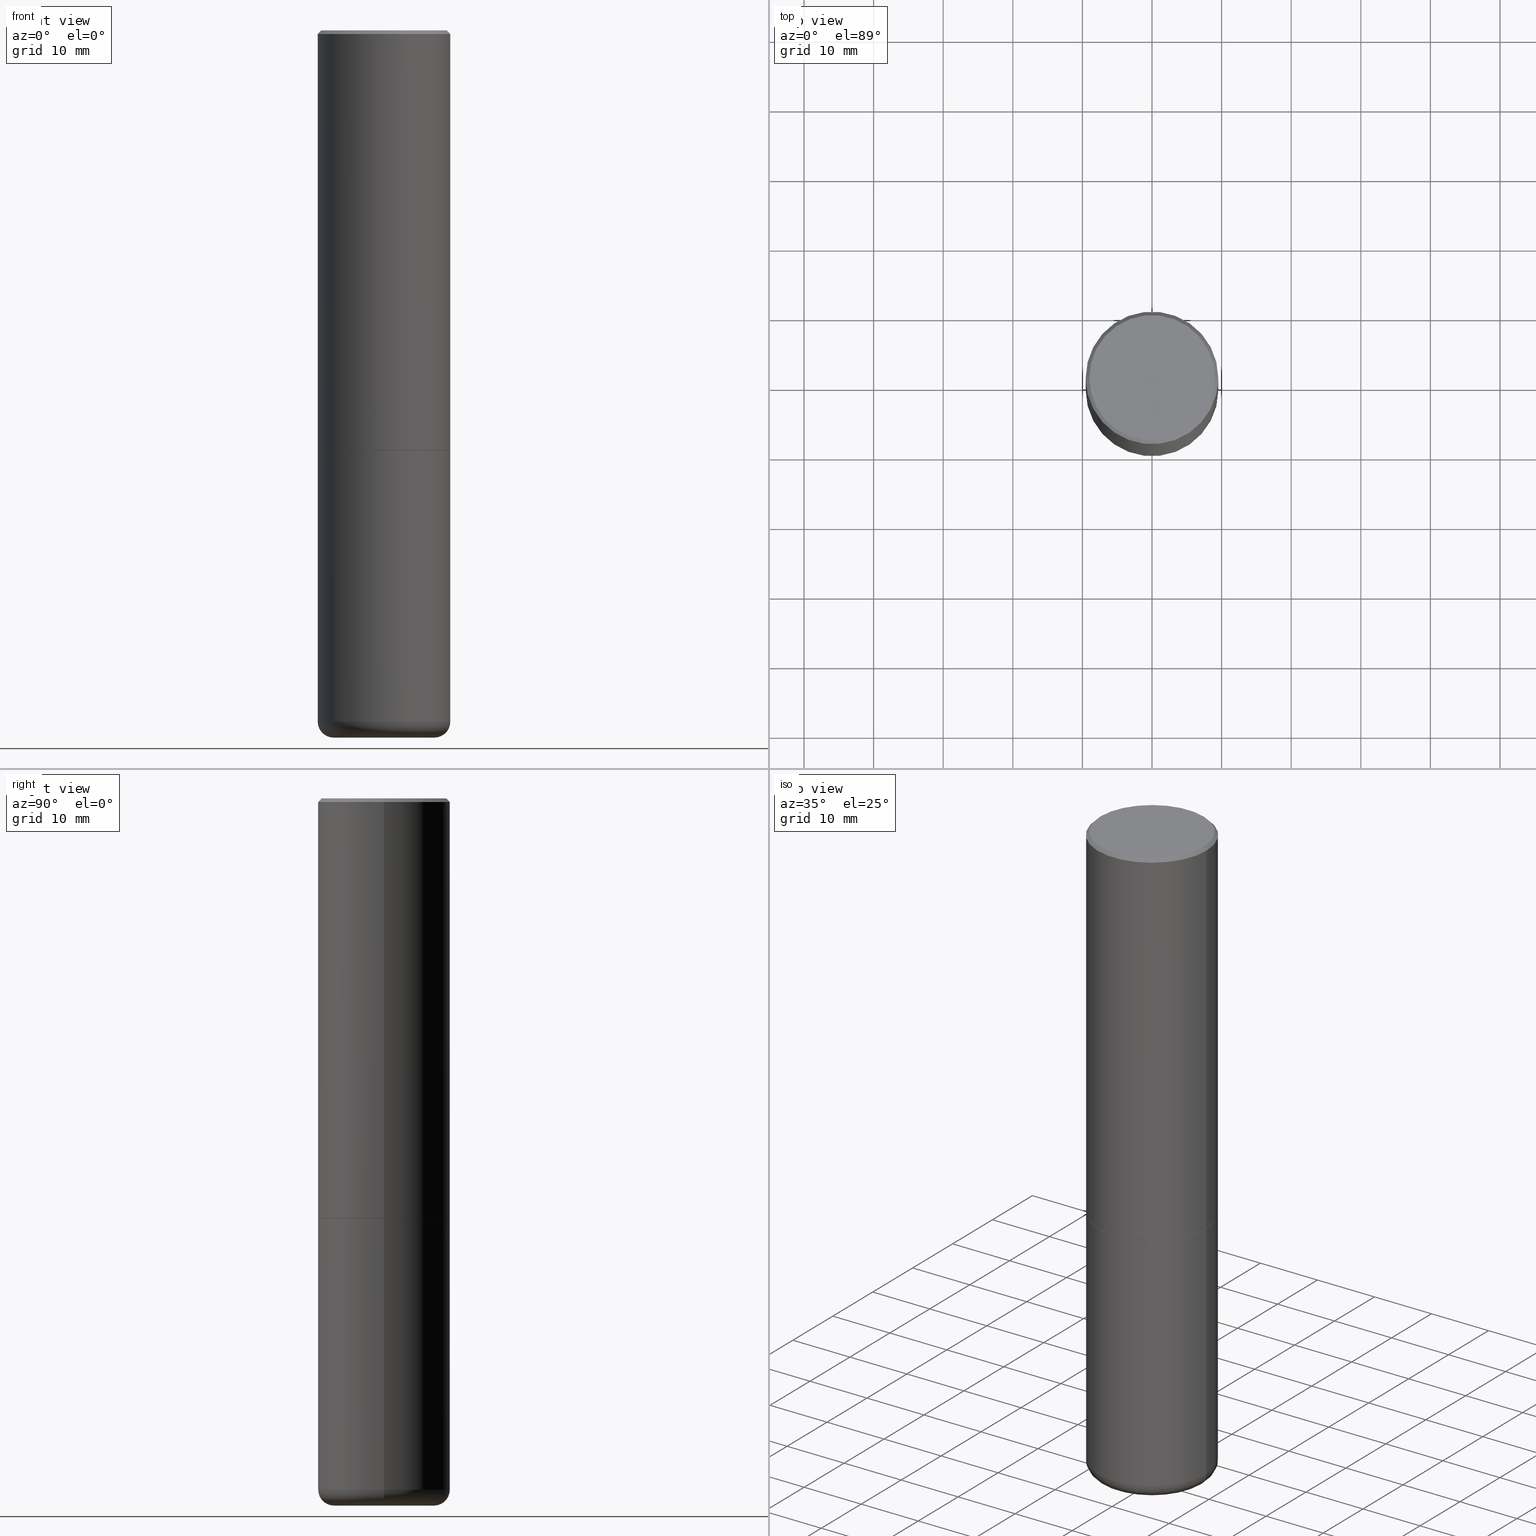
[diagram: canonical four-view strip — front | top / right | iso, engineering-drawing reading convention]
A machine part, canonical four-view strip (front | top / right | iso — engineering-drawing reading convention). The complete STEP part file that produces these views, byte-faithful:
ISO-10303-21;
HEADER;
FILE_DESCRIPTION (( 'STEP AP203' ),
    '1' );
FILE_NAME ('35122.STEP',
    '2022-07-29T12:17:45',
    ( '' ),
    ( '' ),
    'SwSTEP 2.0',
    'SolidWorks 2022',
    '' );
FILE_SCHEMA (( 'CONFIG_CONTROL_DESIGN' ));
ENDSEC;

DATA;
#1 = EDGE_CURVE ( 'NONE', #366, #122, #339, .T. ) ;
#2 = DIRECTION ( 'NONE',  ( 1.000000000000000000, -6.982962677686264344E-15, 0.000000000000000000 ) ) ;
#3 = ADVANCED_FACE ( 'NONE', ( #289 ), #429, .F. ) ;
#4 = LINE ( 'NONE', #270, #458 ) ;
#5 = DIRECTION ( 'NONE',  ( -2.445468806185136597E-29, 3.491481338843145583E-15, 1.000000000000000000 ) ) ;
#6 = VECTOR ( 'NONE', #206, 39.37007874015748143 ) ;
#7 = DIRECTION ( 'NONE',  ( 1.000000000000000000, -6.982962677686267499E-15, 0.000000000000000000 ) ) ;
#8 = DIRECTION ( 'NONE',  ( 1.000000000000000000, -6.982962677686269866E-15, 0.000000000000000000 ) ) ;
#9 = LINE ( 'NONE', #48, #70 ) ;
#10 = ORIENTED_EDGE ( 'NONE', *, *, #457, .F. ) ;
#11 = DIRECTION ( 'NONE',  ( 1.000000000000000000, -6.982962677686267499E-15, 0.000000000000000000 ) ) ;
#12 = VERTEX_POINT ( 'NONE', #244 ) ;
#13 = DIRECTION ( 'NONE',  ( 1.000000000000000000, 0.000000000000000000, 0.000000000000000000 ) ) ;
#14 = AXIS2_PLACEMENT_3D ( 'NONE', #303, #262, #386 ) ;
#15 = AXIS2_PLACEMENT_3D ( 'NONE', #312, #237, #436 ) ;
#16 = ORIENTED_EDGE ( 'NONE', *, *, #443, .T. ) ;
#17 = ORIENTED_EDGE ( 'NONE', *, *, #44, .T. ) ;
#18 = ADVANCED_BREP_SHAPE_REPRESENTATION ( '35122', ( #182, #352, #327 ), #196 ) ;
#19 = ORIENTED_EDGE ( 'NONE', *, *, #269, .F. ) ;
#20 = DIRECTION ( 'NONE',  ( 7.105427357601001859E-15, 1.000000000000000000, -3.491481338843145583E-15 ) ) ;
#21 = VERTEX_POINT ( 'NONE', #400 ) ;
#22 = DIRECTION ( 'NONE',  ( 0.7071067811865454633, -7.319954787623246579E-15, -0.7071067811865493491 ) ) ;
#23 = ORIENTED_EDGE ( 'NONE', *, *, #30, .T. ) ;
#24 = APPLICATION_CONTEXT ( 'configuration controlled 3d designs of mechanical parts and assemblies' ) ;
#25 = CIRCLE ( 'NONE', #278, 0.3549999999999992051 ) ;
#26 = APPROVAL_PERSON_ORGANIZATION ( #444, #175, #179 ) ;
#27 = DIRECTION ( 'NONE',  ( -2.445468806185136597E-29, 3.491481338843145583E-15, 1.000000000000000000 ) ) ;
#28 = APPROVAL ( #333, 'UNSPECIFIED' ) ;
#29 = CARTESIAN_POINT ( 'NONE',  ( 0.000000000000000000, 0.000000000000000000, 0.000000000000000000 ) ) ;
#30 = EDGE_CURVE ( 'NONE', #169, #21, #163, .T. ) ;
#31 = DIRECTION ( 'NONE',  ( 1.000000000000000000, -6.982962677686265922E-15, 4.876176775795935793E-29 ) ) ;
#32 = PERSON_AND_ORGANIZATION ( #306, #114 ) ;
#33 = CIRCLE ( 'NONE', #59, 0.08999999999999985789 ) ;
#34 = DATE_TIME_ROLE ( 'classification_date' ) ;
#35 = CARTESIAN_POINT ( 'NONE',  ( 0.2842146118051471215, -1.595058538206101543E-14, -4.000000000000000000 ) ) ;
#36 = APPROVAL_STATUS ( 'not_yet_approved' ) ;
#37 = ORIENTED_EDGE ( 'NONE', *, *, #443, .F. ) ;
#38 = AXIS2_PLACEMENT_3D ( 'NONE', #285, #200, #11 ) ;
#39 = AXIS2_PLACEMENT_3D ( 'NONE', #155, #415, #75 ) ;
#40 = DIRECTION ( 'NONE',  ( 2.445468806185136597E-29, -3.491481338843145583E-15, -1.000000000000000000 ) ) ;
#41 = CARTESIAN_POINT ( 'NONE',  ( 4.890937612370313446E-31, -6.982962677686349541E-17, -0.02000000000000016695 ) ) ;
#42 = FACE_OUTER_BOUND ( 'NONE', #131, .T. ) ;
#43 = DIRECTION ( 'NONE',  ( -1.000000000000000000, 6.982962677686267499E-15, 0.000000000000000000 ) ) ;
#44 = EDGE_CURVE ( 'NONE', #122, #366, #446, .T. ) ;
#45 = ADVANCED_FACE ( 'NONE', ( #282 ), #152, .T. ) ;
#46 = DIRECTION ( 'NONE',  ( -2.438088387897960049E-29, 3.491481338843145188E-15, 1.000000000000000000 ) ) ;
#47 = AXIS2_PLACEMENT_3D ( 'NONE', #384, #40, #450 ) ;
#48 = CARTESIAN_POINT ( 'NONE',  ( -0.3739999999999996105, -5.634838348009698584E-15, -2.375000000000000000 ) ) ;
#49 = AXIS2_PLACEMENT_3D ( 'NONE', #462, #160, #7 ) ;
#50 = VERTEX_POINT ( 'NONE', #217 ) ;
#51 = MECHANICAL_CONTEXT ( 'NONE', #377, 'mechanical' ) ;
#52 = ORIENTED_EDGE ( 'NONE', *, *, #445, .F. ) ;
#53 = EDGE_CURVE ( 'NONE', #93, #84, #234, .T. ) ;
#54 = ORIENTED_EDGE ( 'NONE', *, *, #433, .T. ) ;
#55 =( NAMED_UNIT ( * ) SI_UNIT ( $, .STERADIAN. ) SOLID_ANGLE_UNIT ( ) );
#56 = ORIENTED_EDGE ( 'NONE', *, *, #308, .T. ) ;
#57 = ORIENTED_EDGE ( 'NONE', *, *, #374, .T. ) ;
#58 = CIRCLE ( 'NONE', #390, 0.3549999999999992051 ) ;
#59 = AXIS2_PLACEMENT_3D ( 'NONE', #248, #330, #157 ) ;
#60 = ORIENTED_EDGE ( 'NONE', *, *, #461, .F. ) ;
#61 = CARTESIAN_POINT ( 'NONE',  ( 5.805542945883513814E-29, -8.288776698413627111E-15, -2.373999999999999666 ) ) ;
#62 = EDGE_LOOP ( 'NONE', ( #356, #233 ) ) ;
#63 = ADVANCED_FACE ( 'NONE', ( #336 ), #99, .T. ) ;
#64 = ORIENTED_EDGE ( 'NONE', *, *, #156, .T. ) ;
#65 = CC_DESIGN_PERSON_AND_ORGANIZATION_ASSIGNMENT ( #32, #295, ( #166 ) ) ;
#66 = CIRCLE ( 'NONE', #133, 0.3749999999999996114 ) ;
#67 = CONICAL_SURFACE ( 'NONE', #77, 0.2602146118051471002, 1.535889741755011029 ) ;
#68 = DIRECTION ( 'NONE',  ( -2.445468806185136597E-29, 3.491481338843145583E-15, 1.000000000000000000 ) ) ;
#69 = SHAPE_DEFINITION_REPRESENTATION ( #91, #18 ) ;
#70 = VECTOR ( 'NONE', #111, 39.37007874015748854 ) ;
#71 = EDGE_CURVE ( 'NONE', #21, #366, #183, .T. ) ;
#72 = LOCAL_TIME ( 8, 17, 45.00000000000000000, #142 ) ;
#73 = LINE ( 'NONE', #118, #426 ) ;
#74 = CALENDAR_DATE ( 2022, 29, 7 ) ;
#75 = DIRECTION ( 'NONE',  ( 1.000000000000000000, -6.982962677686265922E-15, 0.000000000000000000 ) ) ;
#76 = CONICAL_SURFACE ( 'NONE', #86, 0.2842146118051471215, 1.562069680534920346 ) ;
#77 = AXIS2_PLACEMENT_3D ( 'NONE', #115, #150, #267 ) ;
#78 = DIRECTION ( 'NONE',  ( -2.445468806185136597E-29, 3.491481338843145583E-15, 1.000000000000000000 ) ) ;
#79 = DIRECTION ( 'NONE',  ( -2.445468806185136877E-29, 3.491481338843145188E-15, 1.000000000000000000 ) ) ;
#80 = ADVANCED_FACE ( 'NONE', ( #178 ), #486, .T. ) ;
#81 = DIRECTION ( 'NONE',  ( -2.445468806185136597E-29, 3.491481338843145583E-15, 1.000000000000000000 ) ) ;
#82 = CARTESIAN_POINT ( 'NONE',  ( 5.807988414689699417E-29, -8.292268179752470118E-15, -2.375000000000000000 ) ) ;
#83 = LINE ( 'NONE', #268, #299 ) ;
#84 = VERTEX_POINT ( 'NONE', #177 ) ;
#85 = CARTESIAN_POINT ( 'NONE',  ( 0.3749999999999992784, -2.642516375941182506E-15, -0.02000000000000016695 ) ) ;
#86 = AXIS2_PLACEMENT_3D ( 'NONE', #422, #412, #264 ) ;
#87 = CC_DESIGN_APPROVAL ( #175, ( #176 ) ) ;
#88 = ORIENTED_EDGE ( 'NONE', *, *, #30, .F. ) ;
#89 = DIRECTION ( 'NONE',  ( 0.000000000000000000, 0.000000000000000000, 1.000000000000000000 ) ) ;
#90 = ORIENTED_EDGE ( 'NONE', *, *, #44, .F. ) ;
#91 = PRODUCT_DEFINITION_SHAPE ( 'NONE', 'NONE',  #205 ) ;
#92 = PERSON_AND_ORGANIZATION ( #306, #114 ) ;
#93 = VERTEX_POINT ( 'NONE', #213 ) ;
#94 = VERTEX_POINT ( 'NONE', #216 ) ;
#95 =( NAMED_UNIT ( * ) PLANE_ANGLE_UNIT ( ) SI_UNIT ( $, .RADIAN. ) );
#96 = ADVANCED_FACE ( 'NONE', ( #372 ), #479, .F. ) ;
#97 = ORIENTED_EDGE ( 'NONE', *, *, #215, .F. ) ;
#98 = DIRECTION ( 'NONE',  ( 1.000000000000000000, -6.982962677686264344E-15, 0.000000000000000000 ) ) ;
#99 = CYLINDRICAL_SURFACE ( 'NONE', #212, 0.3749999999999998335 ) ;
#100 = VECTOR ( 'NONE', #292, 39.37007874015748143 ) ;
#101 = APPROVAL_DATE_TIME ( #442, #175 ) ;
#102 = CALENDAR_DATE ( 2022, 29, 7 ) ;
#103 = AXIS2_PLACEMENT_3D ( 'NONE', #61, #476, #98 ) ;
#104 = AXIS2_PLACEMENT_3D ( 'NONE', #181, #135, #335 ) ;
#105 = CONICAL_SURFACE ( 'NONE', #144, 0.3739999999999996105, 0.7853981633974141952 ) ;
#106 = CARTESIAN_POINT ( 'NONE',  ( -0.3749999999999995559, -1.514767903494871085E-15, -2.373999999999999666 ) ) ;
#107 = PERSON_AND_ORGANIZATION_ROLE ( 'classification_officer' ) ;
#108 = FACE_OUTER_BOUND ( 'NONE', #322, .T. ) ;
#109 = DIRECTION ( 'NONE',  ( -0.7071067811865454633, 2.468850131082235761E-15, -0.7071067811865493491 ) ) ;
#110 = EDGE_CURVE ( 'NONE', #211, #284, #235, .T. ) ;
#111 = DIRECTION ( 'NONE',  ( -0.7071067811865232589, 7.493145998870265808E-15, 0.7071067811865715536 ) ) ;
#112 = EDGE_CURVE ( 'NONE', #314, #427, #58, .T. ) ;
#113 = DIRECTION ( 'NONE',  ( 0.9993908270190957621, -6.978169709227537544E-15, -0.03489949670249996999 ) ) ;
#114 = ORGANIZATION ( 'UNSPECIFIED', 'UNSPECIFIED', '' ) ;
#115 = CARTESIAN_POINT ( 'NONE',  ( 9.781363033949554228E-29, -1.396519408266767050E-14, -3.999790555173021733 ) ) ;
#116 = DIRECTION ( 'NONE',  ( 1.000000000000000000, -6.982962677686264344E-15, 0.000000000000000000 ) ) ;
#117 = FACE_OUTER_BOUND ( 'NONE', #360, .T. ) ;
#118 = CARTESIAN_POINT ( 'NONE',  ( -0.3749999999999992784, 2.548781377355481985E-15, -0.02000000000000016695 ) ) ;
#119 = EDGE_CURVE ( 'NONE', #93, #21, #448, .T. ) ;
#120 = DIRECTION ( 'NONE',  ( -2.445468806185136597E-29, 3.491481338843145583E-15, 1.000000000000000000 ) ) ;
#121 = EDGE_LOOP ( 'NONE', ( #10, #56, #272, #466 ) ) ;
#122 = VERTEX_POINT ( 'NONE', #388 ) ;
#123 = CONICAL_SURFACE ( 'NONE', #358, 0.3749999999999992784, 0.7853981633974456145 ) ;
#124 = ORIENTED_EDGE ( 'NONE', *, *, #186, .T. ) ;
#125 = APPLICATION_PROTOCOL_DEFINITION ( 'international standard', 'config_control_design', 1994, #377 ) ;
#126 = EDGE_LOOP ( 'NONE', ( #365, #424, #283, #88 ) ) ;
#127 = DIRECTION ( 'NONE',  ( 0.9999619230641711987, -6.890705306874857671E-15, -0.008726535498378559449 ) ) ;
#128 = ORIENTED_EDGE ( 'NONE', *, *, #471, .T. ) ;
#129 = ADVANCED_FACE ( 'NONE', ( #149 ), #351, .F. ) ;
#130 = EDGE_CURVE ( 'NONE', #50, #276, #404, .T. ) ;
#131 = EDGE_LOOP ( 'NONE', ( #430, #57, #353 ) ) ;
#132 = CARTESIAN_POINT ( 'NONE',  ( 4.890937612370313446E-31, -6.982962677686349541E-17, -0.02000000000000016695 ) ) ;
#133 = AXIS2_PLACEMENT_3D ( 'NONE', #219, #348, #2 ) ;
#134 = LOCAL_TIME ( 8, 17, 45.00000000000000000, #140 ) ;
#135 = DIRECTION ( 'NONE',  ( 2.438088387897960049E-29, -3.491481338843145188E-15, -1.000000000000000000 ) ) ;
#136 = PERSON_AND_ORGANIZATION_ROLE ( 'creator' ) ;
#137 = VECTOR ( 'NONE', #79, 39.37007874015748143 ) ;
#138 = CIRCLE ( 'NONE', #373, 0.08999999999999985789 ) ;
#139 = EDGE_CURVE ( 'NONE', #427, #314, #25, .T. ) ;
#140 = COORDINATED_UNIVERSAL_TIME_OFFSET ( 5, 0, .BEHIND. ) ;
#141 = EDGE_CURVE ( 'NONE', #94, #464, #83, .T. ) ;
#142 = COORDINATED_UNIVERSAL_TIME_OFFSET ( 5, 0, .BEHIND. ) ;
#143 = AXIS2_PLACEMENT_3D ( 'NONE', #313, #145, #345 ) ;
#144 = AXIS2_PLACEMENT_3D ( 'NONE', #190, #81, #453 ) ;
#145 = DIRECTION ( 'NONE',  ( -2.445468806185136597E-29, 3.491481338843145583E-15, 1.000000000000000000 ) ) ;
#146 = CARTESIAN_POINT ( 'NONE',  ( 9.781363033949554228E-29, -1.396519408266767050E-14, -3.999790555173021733 ) ) ;
#147 = EDGE_LOOP ( 'NONE', ( #128, #238, #355, #19 ) ) ;
#148 = CARTESIAN_POINT ( 'NONE',  ( 0.3749999999999992784, -2.642516375941182506E-15, -0.02000000000000016695 ) ) ;
#149 = FACE_OUTER_BOUND ( 'NONE', #432, .T. ) ;
#150 = DIRECTION ( 'NONE',  ( 2.445468806185136597E-29, -3.491481338843145583E-15, -1.000000000000000000 ) ) ;
#151 = CYLINDRICAL_SURFACE ( 'NONE', #481, 0.3749999999999998335 ) ;
#152 = CONICAL_SURFACE ( 'NONE', #440, 0.3739999999999996105, 0.7853981633974141952 ) ;
#153 = CIRCLE ( 'NONE', #482, 0.2602146118051471002 ) ;
#154 = PRODUCT_RELATED_PRODUCT_CATEGORY ( 'detail', '', ( #316 ) ) ;
#155 = CARTESIAN_POINT ( 'NONE',  ( 9.561791412620176703E-29, -1.365170399991867772E-14, -3.910003426924224534 ) ) ;
#156 = EDGE_CURVE ( 'NONE', #84, #169, #9, .T. ) ;
#157 = DIRECTION ( 'NONE',  ( 1.000000000000000000, -6.982962677686257244E-15, 0.000000000000000000 ) ) ;
#158 = DIRECTION ( 'NONE',  ( 1.000000000000000000, -6.982962677686265922E-15, 4.876176775795935793E-29 ) ) ;
#159 = EDGE_LOOP ( 'NONE', ( #52, #286, #294, #97 ) ) ;
#160 = DIRECTION ( 'NONE',  ( -2.445468806185136597E-29, 3.491481338843145583E-15, 1.000000000000000000 ) ) ;
#161 = CARTESIAN_POINT ( 'NONE',  ( 2.618611004132405237E-15, 0.3749999999999913403, -2.375000000000001332 ) ) ;
#162 = ORIENTED_EDGE ( 'NONE', *, *, #110, .T. ) ;
#163 = CIRCLE ( 'NONE', #103, 0.3749999999999996114 ) ;
#164 = TOROIDAL_SURFACE ( 'NONE', #143, 0.2850000000000003086, 0.08999999999999987177 ) ;
#165 = ORIENTED_EDGE ( 'NONE', *, *, #186, .F. ) ;
#166 = PRODUCT_DEFINITION_FORMATION_WITH_SPECIFIED_SOURCE ( 'ANY', '', #316, .NOT_KNOWN. ) ;
#167 = EDGE_LOOP ( 'NONE', ( #425, #380, #240, #245 ) ) ;
#168 = CC_DESIGN_PERSON_AND_ORGANIZATION_ASSIGNMENT ( #487, #136, ( #205 ) ) ;
#169 = VERTEX_POINT ( 'NONE', #106 ) ;
#170 = EDGE_LOOP ( 'NONE', ( #472, #318, #173, #165 ) ) ;
#171 = DIRECTION ( 'NONE',  ( -2.445468806185136877E-29, 3.491481338843145188E-15, 1.000000000000000000 ) ) ;
#172 = EDGE_LOOP ( 'NONE', ( #354, #23, #317, #90 ) ) ;
#173 = ORIENTED_EDGE ( 'NONE', *, *, #1, .T. ) ;
#174 = CLOSED_SHELL ( 'NONE', ( #334, #323, #63, #370, #231, #3, #297, #361, #180 ) ) ;
#175 = APPROVAL ( #36, 'UNSPECIFIED' ) ;
#176 = SECURITY_CLASSIFICATION ( '', '', #449 ) ;
#177 = CARTESIAN_POINT ( 'NONE',  ( -0.3739999999999996105, -5.629539893661476182E-15, -2.375000000000000000 ) ) ;
#178 = FACE_OUTER_BOUND ( 'NONE', #172, .T. ) ;
#179 = APPROVAL_ROLE ( '' ) ;
#180 = ADVANCED_FACE ( 'NONE', ( #259 ), #76, .F. ) ;
#181 = CARTESIAN_POINT ( 'NONE',  ( 2.478951750578619081E-15, 0.3549999999999992051, -1.237341619044263666E-15 ) ) ;
#182 = MANIFOLD_SOLID_BREP ( 'Body-Move/Copy2[1]', #174 ) ;
#183 = LINE ( 'NONE', #250, #100 ) ;
#184 = APPROVAL_DATE_TIME ( #340, #28 ) ;
#185 = CARTESIAN_POINT ( 'NONE',  ( 5.805542945883513814E-29, -8.288776698413627111E-15, -2.373999999999999666 ) ) ;
#186 = EDGE_CURVE ( 'NONE', #427, #122, #73, .T. ) ;
#187 = AXIS2_PLACEMENT_3D ( 'NONE', #185, #5, #338 ) ;
#188 = UNCERTAINTY_MEASURE_WITH_UNIT (LENGTH_MEASURE( 1.000000000000000082E-05 ), #395, 'distance_accuracy_value', 'NONE');
#189 = DIRECTION ( 'NONE',  ( 2.445468806185136597E-29, -3.491481338843145583E-15, -1.000000000000000000 ) ) ;
#190 = CARTESIAN_POINT ( 'NONE',  ( 5.807988414689699417E-29, -8.292268179752470118E-15, -2.375000000000000000 ) ) ;
#191 = CARTESIAN_POINT ( 'NONE',  ( 0.3749999999999996114, -1.091087918388481698E-14, -2.375000000000000000 ) ) ;
#192 = EDGE_CURVE ( 'NONE', #276, #50, #66, .T. ) ;
#193 = DIRECTION ( 'NONE',  ( -2.445468806185136597E-29, 3.491481338843145583E-15, 1.000000000000000000 ) ) ;
#194 = DIRECTION ( 'NONE',  ( 1.000000000000000000, -6.982962677686266711E-15, 4.876231632511998833E-29 ) ) ;
#195 = CYLINDRICAL_SURFACE ( 'NONE', #383, 0.3749999999999993894 ) ;
#196 =( GEOMETRIC_REPRESENTATION_CONTEXT ( 3 ) GLOBAL_UNCERTAINTY_ASSIGNED_CONTEXT ( ( #188 ) ) GLOBAL_UNIT_ASSIGNED_CONTEXT ( ( #395, #95, #55 ) ) REPRESENTATION_CONTEXT ( 'NONE', 'WORKASPACE' ) );
#197 = CARTESIAN_POINT ( 'NONE',  ( 5.807988414689699417E-29, -8.292268179752470118E-15, -2.375000000000000000 ) ) ;
#198 = ORIENTED_EDGE ( 'NONE', *, *, #192, .F. ) ;
#199 = CARTESIAN_POINT ( 'NONE',  ( 9.781363033949554228E-29, -1.396519408266767050E-14, -3.999790555173021733 ) ) ;
#200 = DIRECTION ( 'NONE',  ( -2.445468806185136597E-29, 3.491481338843145583E-15, 1.000000000000000000 ) ) ;
#201 = ORIENTED_EDGE ( 'NONE', *, *, #433, .F. ) ;
#202 = LINE ( 'NONE', #475, #420 ) ;
#203 = VERTEX_POINT ( 'NONE', #378 ) ;
#204 = EDGE_LOOP ( 'NONE', ( #210, #438, #470 ) ) ;
#205 = PRODUCT_DEFINITION ( 'UNKNOWN', '', #166, #455 ) ;
#206 = DIRECTION ( 'NONE',  ( -2.445468806185136877E-29, 3.491481338843145188E-15, 1.000000000000000000 ) ) ;
#207 = AXIS2_PLACEMENT_3D ( 'NONE', #146, #451, #385 ) ;
#208 = CIRCLE ( 'NONE', #49, 0.3739999999999996105 ) ;
#209 = ORIENTED_EDGE ( 'NONE', *, *, #246, .T. ) ;
#210 = ORIENTED_EDGE ( 'NONE', *, *, #374, .F. ) ;
#211 = VERTEX_POINT ( 'NONE', #35 ) ;
#212 = AXIS2_PLACEMENT_3D ( 'NONE', #29, #256, #31 ) ;
#213 = CARTESIAN_POINT ( 'NONE',  ( 0.3739999999999996105, -1.090389622120713096E-14, -2.375000000000000000 ) ) ;
#214 = APPROVAL_ROLE ( '' ) ;
#215 = EDGE_CURVE ( 'NONE', #397, #12, #419, .T. ) ;
#216 = CARTESIAN_POINT ( 'NONE',  ( 9.759751238418562022E-29, -1.393259391792969800E-14, -3.990703660695789523 ) ) ;
#217 = CARTESIAN_POINT ( 'NONE',  ( -0.3749999999999996114, -8.307450830735199012E-15, -2.375000000000000000 ) ) ;
#218 = CALENDAR_DATE ( 2022, 29, 7 ) ;
#219 = CARTESIAN_POINT ( 'NONE',  ( 5.807988414689699417E-29, -8.292268179752470118E-15, -2.375000000000000000 ) ) ;
#220 = PERSON_AND_ORGANIZATION_ROLE ( 'creator' ) ;
#221 = CARTESIAN_POINT ( 'NONE',  ( 9.561791412620176703E-29, -1.365170399991867772E-14, -3.910003426924224534 ) ) ;
#222 = DIRECTION ( 'NONE',  ( -2.445468806185136597E-29, 3.491481338843145583E-15, 1.000000000000000000 ) ) ;
#223 = AXIS2_PLACEMENT_3D ( 'NONE', #329, #483, #375 ) ;
#224 = CONICAL_SURFACE ( 'NONE', #447, 0.3749999999999992784, 0.7853981633974456145 ) ;
#225 = DIRECTION ( 'NONE',  ( -1.000000000000000000, 6.982962677686267499E-15, 0.000000000000000000 ) ) ;
#226 = CARTESIAN_POINT ( 'NONE',  ( -0.2842146118051471215, -1.146681390902031989E-14, -4.000000000000000000 ) ) ;
#227 = EDGE_CURVE ( 'NONE', #21, #169, #411, .T. ) ;
#228 = LINE ( 'NONE', #85, #332 ) ;
#229 = DIRECTION ( 'NONE',  ( 1.000000000000000000, -6.982962677686266711E-15, 4.876231632511998833E-29 ) ) ;
#230 = DIMENSIONAL_EXPONENTS ( 1.000000000000000000, 0.000000000000000000, 0.000000000000000000, 0.000000000000000000, 0.000000000000000000, 0.000000000000000000, 0.000000000000000000 ) ;
#231 = ADVANCED_FACE ( 'NONE', ( #490 ), #249, .F. ) ;
#232 = DIRECTION ( 'NONE',  ( -2.445468806185136597E-29, 3.491481338843145583E-15, 1.000000000000000000 ) ) ;
#233 = ORIENTED_EDGE ( 'NONE', *, *, #130, .T. ) ;
#234 = CIRCLE ( 'NONE', #223, 0.3739999999999996105 ) ;
#235 = CIRCLE ( 'NONE', #331, 0.2842146118051471215 ) ;
#236 = LOCAL_TIME ( 8, 17, 45.00000000000000000, #484 ) ;
#237 = DIRECTION ( 'NONE',  ( -2.445468806185136597E-29, 3.491481338843145583E-15, 1.000000000000000000 ) ) ;
#238 = ORIENTED_EDGE ( 'NONE', *, *, #457, .T. ) ;
#239 = CARTESIAN_POINT ( 'NONE',  ( 0.3749999999999998335, -2.618611004132348439E-15, 1.828566290923475082E-29 ) ) ;
#240 = ORIENTED_EDGE ( 'NONE', *, *, #1, .F. ) ;
#241 = CARTESIAN_POINT ( 'NONE',  ( -0.2850000000000003086, -1.162665720300238961E-14, -3.910003426924224534 ) ) ;
#242 = ORIENTED_EDGE ( 'NONE', *, *, #139, .F. ) ;
#243 = CARTESIAN_POINT ( 'NONE',  ( -0.3549999999999992051, 2.513866563967050730E-15, 4.268512490082953109E-18 ) ) ;
#244 = CARTESIAN_POINT ( 'NONE',  ( 0.3750000000000001110, -1.627031500405102774E-14, -3.910003426924224534 ) ) ;
#245 = ORIENTED_EDGE ( 'NONE', *, *, #71, .F. ) ;
#246 = EDGE_CURVE ( 'NONE', #12, #397, #469, .T. ) ;
#247 = DIRECTION ( 'NONE',  ( 1.000000000000000000, -6.982962677686267499E-15, 0.000000000000000000 ) ) ;
#248 = CARTESIAN_POINT ( 'NONE',  ( 0.2850000000000003086, -1.564184836305926752E-14, -3.910003426924224534 ) ) ;
#249 = CONICAL_SURFACE ( 'NONE', #207, 0.2602146118051471002, 1.535889741755011029 ) ;
#250 = CARTESIAN_POINT ( 'NONE',  ( 0.3749999999999993894, -2.618611004132345678E-15, 1.828566290923473120E-29 ) ) ;
#251 = CC_DESIGN_SECURITY_CLASSIFICATION ( #176, ( #166 ) ) ;
#252 = ADVANCED_FACE ( 'NONE', ( #311 ), #123, .T. ) ;
#253 = APPROVAL ( #298, 'UNSPECIFIED' ) ;
#254 = CARTESIAN_POINT ( 'NONE',  ( 0.000000000000000000, 0.000000000000000000, 0.000000000000000000 ) ) ;
#255 = APPROVAL_DATE_TIME ( #376, #253 ) ;
#256 = DIRECTION ( 'NONE',  ( -2.445468806185136597E-29, 3.491481338843145583E-15, 1.000000000000000000 ) ) ;
#257 = CONICAL_SURFACE ( 'NONE', #47, 0.2842146118051471215, 1.562069680534920346 ) ;
#258 = LOCAL_TIME ( 8, 17, 45.00000000000000000, #296 ) ;
#259 = FACE_OUTER_BOUND ( 'NONE', #121, .T. ) ;
#260 = CALENDAR_DATE ( 2022, 29, 7 ) ;
#261 = CARTESIAN_POINT ( 'NONE',  ( 4.890937612370313446E-31, -6.982962677686349541E-17, -0.02000000000000016695 ) ) ;
#262 = DIRECTION ( 'NONE',  ( -2.445468806185136597E-29, 3.491481338843145583E-15, 1.000000000000000000 ) ) ;
#263 = DIRECTION ( 'NONE',  ( 1.000000000000000000, -6.982962677686265922E-15, 4.876176775795935793E-29 ) ) ;
#264 = DIRECTION ( 'NONE',  ( -1.000000000000000000, 6.982962677686267499E-15, 0.000000000000000000 ) ) ;
#265 = CARTESIAN_POINT ( 'NONE',  ( 0.000000000000000000, 0.000000000000000000, 0.000000000000000000 ) ) ;
#266 = CIRCLE ( 'NONE', #478, 0.2602146118051471002 ) ;
#267 = DIRECTION ( 'NONE',  ( -1.000000000000000000, 6.982962677686269866E-15, 0.000000000000000000 ) ) ;
#268 = CARTESIAN_POINT ( 'NONE',  ( -0.2602146118051471002, -1.214812516024370648E-14, -3.999790555173021733 ) ) ;
#269 = EDGE_CURVE ( 'NONE', #464, #284, #492, .T. ) ;
#270 = CARTESIAN_POINT ( 'NONE',  ( 0.2602146118051471002, -1.575039590594777817E-14, -3.999790555173021733 ) ) ;
#271 = DIRECTION ( 'NONE',  ( 0.7071067811865232589, -2.468850131082003836E-15, 0.7071067811865715536 ) ) ;
#272 = ORIENTED_EDGE ( 'NONE', *, *, #269, .T. ) ;
#273 = DIRECTION ( 'NONE',  ( 1.000000000000000000, -6.982962677686266711E-15, 4.876176775795936353E-29 ) ) ;
#274 = DIRECTION ( 'NONE',  ( 1.000000000000000000, -6.982962677686269866E-15, 0.000000000000000000 ) ) ;
#275 = EDGE_LOOP ( 'NONE', ( #37, #435, #54, #394 ) ) ;
#276 = VERTEX_POINT ( 'NONE', #191 ) ;
#277 = CARTESIAN_POINT ( 'NONE',  ( -0.3750000000000001110, -8.307450830735194279E-15, -3.910003426924224534 ) ) ;
#278 = AXIS2_PLACEMENT_3D ( 'NONE', #381, #460, #194 ) ;
#279 = EDGE_CURVE ( 'NONE', #169, #122, #307, .T. ) ;
#280 = CC_DESIGN_APPROVAL ( #28, ( #166 ) ) ;
#281 = LINE ( 'NONE', #359, #6 ) ;
#282 = FACE_OUTER_BOUND ( 'NONE', #341, .T. ) ;
#283 = ORIENTED_EDGE ( 'NONE', *, *, #119, .T. ) ;
#284 = VERTEX_POINT ( 'NONE', #226 ) ;
#285 = CARTESIAN_POINT ( 'NONE',  ( 4.890937612370313446E-31, -6.982962677686349541E-17, -0.02000000000000016695 ) ) ;
#286 = ORIENTED_EDGE ( 'NONE', *, *, #434, .T. ) ;
#287 = VECTOR ( 'NONE', #271, 39.37007874015748854 ) ;
#288 = CIRCLE ( 'NONE', #15, 0.2842146118051471215 ) ;
#289 = FACE_OUTER_BOUND ( 'NONE', #62, .T. ) ;
#290 = CC_DESIGN_PERSON_AND_ORGANIZATION_ASSIGNMENT ( #393, #431, ( #316 ) ) ;
#291 = AXIS2_PLACEMENT_3D ( 'NONE', #254, #27, #409 ) ;
#292 = DIRECTION ( 'NONE',  ( -2.445468806185136877E-29, 3.491481338843145188E-15, 1.000000000000000000 ) ) ;
#293 = AXIS2_PLACEMENT_3D ( 'NONE', #221, #78, #491 ) ;
#294 = ORIENTED_EDGE ( 'NONE', *, *, #410, .T. ) ;
#295 = PERSON_AND_ORGANIZATION_ROLE ( 'design_supplier' ) ;
#296 = COORDINATED_UNIVERSAL_TIME_OFFSET ( 5, 0, .BEHIND. ) ;
#297 = ADVANCED_FACE ( 'NONE', ( #346 ), #151, .T. ) ;
#298 = APPROVAL_STATUS ( 'not_yet_approved' ) ;
#299 = VECTOR ( 'NONE', #423, 39.37007874015748143 ) ;
#300 = VECTOR ( 'NONE', #171, 39.37007874015748143 ) ;
#301 = PERSON_AND_ORGANIZATION ( #306, #114 ) ;
#302 = FACE_OUTER_BOUND ( 'NONE', #147, .T. ) ;
#303 = CARTESIAN_POINT ( 'NONE',  ( 9.561791412620176703E-29, -1.365170399991867772E-14, -3.910003426924224534 ) ) ;
#304 = DATE_TIME_ROLE ( 'creation_date' ) ;
#305 = CARTESIAN_POINT ( 'NONE',  ( -0.2842146118051471215, -1.198126532868414923E-14, -4.000000000000000000 ) ) ;
#306 = PERSON ( 'UNSPECIFIED', 'UNSPECIFIED', 'UNSPECIFIED', ('UNSPECIFIED'), ('UNSPECIFIED'), ('UNSPECIFIED') ) ;
#307 = LINE ( 'NONE', #418, #137 ) ;
#308 = EDGE_CURVE ( 'NONE', #203, #464, #266, .T. ) ;
#309 = APPROVAL_PERSON_ORGANIZATION ( #92, #253, #413 ) ;
#310 = DIRECTION ( 'NONE',  ( 2.445468806185136597E-29, -3.491481338843145583E-15, -1.000000000000000000 ) ) ;
#311 = FACE_OUTER_BOUND ( 'NONE', #170, .T. ) ;
#312 = CARTESIAN_POINT ( 'NONE',  ( 9.781875224740546387E-29, -1.396592535537258233E-14, -4.000000000000000000 ) ) ;
#313 = CARTESIAN_POINT ( 'NONE',  ( 9.561791412620176703E-29, -1.365170399991867772E-14, -3.910003426924224534 ) ) ;
#314 = VERTEX_POINT ( 'NONE', #463 ) ;
#315 = EDGE_LOOP ( 'NONE', ( #209, #16, #198, #201 ) ) ;
#316 = PRODUCT ( '35122', '35122', '', ( #51 ) ) ;
#317 = ORIENTED_EDGE ( 'NONE', *, *, #71, .T. ) ;
#318 = ORIENTED_EDGE ( 'NONE', *, *, #407, .T. ) ;
#319 = APPLICATION_PROTOCOL_DEFINITION ( 'international standard', 'config_control_design', 1994, #24 ) ;
#320 = ORIENTED_EDGE ( 'NONE', *, *, #53, .F. ) ;
#321 = DIRECTION ( 'NONE',  ( -1.000000000000000000, 7.105427357601001859E-15, 0.000000000000000000 ) ) ;
#322 = EDGE_LOOP ( 'NONE', ( #162, #401, #477, #392 ) ) ;
#323 = ADVANCED_FACE ( 'NONE', ( #108 ), #164, .T. ) ;
#324 = ORIENTED_EDGE ( 'NONE', *, *, #112, .T. ) ;
#325 = CLOSED_SHELL ( 'NONE', ( #45, #398, #252, #344, #80, #363, #129, #96 ) ) ;
#326 = TOROIDAL_SURFACE ( 'NONE', #293, 0.2850000000000003086, 0.08999999999999987177 ) ;
#327 = AXIS2_PLACEMENT_3D ( 'NONE', #428, #89, #13 ) ;
#328 = DIRECTION ( 'NONE',  ( 1.000000000000000000, -6.982962677686267499E-15, 0.000000000000000000 ) ) ;
#329 = CARTESIAN_POINT ( 'NONE',  ( 5.807988414689699417E-29, -8.292268179752470118E-15, -2.375000000000000000 ) ) ;
#330 = DIRECTION ( 'NONE',  ( -6.982962677686266711E-15, -1.000000000000000000, 3.491481338843145583E-15 ) ) ;
#331 = AXIS2_PLACEMENT_3D ( 'NONE', #405, #68, #368 ) ;
#332 = VECTOR ( 'NONE', #22, 39.37007874015748854 ) ;
#333 = APPROVAL_STATUS ( 'not_yet_approved' ) ;
#334 = ADVANCED_FACE ( 'NONE', ( #302 ), #257, .F. ) ;
#335 = DIRECTION ( 'NONE',  ( -1.000000000000000000, 6.982962677686265922E-15, -4.876176775795935793E-29 ) ) ;
#336 = FACE_OUTER_BOUND ( 'NONE', #315, .T. ) ;
#337 = COORDINATED_UNIVERSAL_TIME_OFFSET ( 5, 0, .BEHIND. ) ;
#338 = DIRECTION ( 'NONE',  ( 1.000000000000000000, -6.982962677686264344E-15, 0.000000000000000000 ) ) ;
#339 = CIRCLE ( 'NONE', #38, 0.3749999999999992784 ) ;
#340 = DATE_AND_TIME ( #218, #236 ) ;
#341 = EDGE_LOOP ( 'NONE', ( #468, #64, #452, #474 ) ) ;
#342 = DIRECTION ( 'NONE',  ( -2.445468806185136597E-29, 3.491481338843145583E-15, 1.000000000000000000 ) ) ;
#343 = CARTESIAN_POINT ( 'NONE',  ( -1.043851414335219820E-46, 1.490343170380447200E-32, 4.268512490100411279E-18 ) ) ;
#344 = ADVANCED_FACE ( 'NONE', ( #117 ), #224, .T. ) ;
#345 = DIRECTION ( 'NONE',  ( 1.000000000000000000, -6.982962677686265133E-15, 4.883557194083112340E-29 ) ) ;
#346 = FACE_OUTER_BOUND ( 'NONE', #275, .T. ) ;
#347 = CARTESIAN_POINT ( 'NONE',  ( 9.781363033949554228E-29, -1.396519408266767050E-14, -3.999790555173021733 ) ) ;
#348 = DIRECTION ( 'NONE',  ( -2.445468806185136597E-29, 3.491481338843145583E-15, 1.000000000000000000 ) ) ;
#349 = APPROVAL_PERSON_ORGANIZATION ( #301, #28, #214 ) ;
#350 = CARTESIAN_POINT ( 'NONE',  ( 0.000000000000000000, 0.000000000000000000, 0.000000000000000000 ) ) ;
#351 = PLANE ( 'NONE',  #382 ) ;
#352 = MANIFOLD_SOLID_BREP ( 'Body-Move/Copy2[2]', #325 ) ;
#353 = ORIENTED_EDGE ( 'NONE', *, *, #471, .F. ) ;
#354 = ORIENTED_EDGE ( 'NONE', *, *, #279, .F. ) ;
#355 = ORIENTED_EDGE ( 'NONE', *, *, #434, .F. ) ;
#356 = ORIENTED_EDGE ( 'NONE', *, *, #192, .T. ) ;
#357 = ORIENTED_EDGE ( 'NONE', *, *, #407, .F. ) ;
#358 = AXIS2_PLACEMENT_3D ( 'NONE', #41, #189, #43 ) ;
#359 = CARTESIAN_POINT ( 'NONE',  ( -0.3749999999999998335, 2.664535259100374514E-15, -1.844600658845588757E-29 ) ) ;
#360 = EDGE_LOOP ( 'NONE', ( #357, #242, #124, #17 ) ) ;
#361 = ADVANCED_FACE ( 'NONE', ( #414 ), #326, .T. ) ;
#362 = CARTESIAN_POINT ( 'NONE',  ( -0.2602146118051471002, -1.214812516024370648E-14, -3.999790555173021733 ) ) ;
#363 = ADVANCED_FACE ( 'NONE', ( #417 ), #105, .T. ) ;
#364 = DIRECTION ( 'NONE',  ( 2.438088387897960049E-29, -3.491481338843145188E-15, -1.000000000000000000 ) ) ;
#365 = ORIENTED_EDGE ( 'NONE', *, *, #156, .F. ) ;
#366 = VERTEX_POINT ( 'NONE', #148 ) ;
#367 = VECTOR ( 'NONE', #454, 39.37007874015748854 ) ;
#368 = DIRECTION ( 'NONE',  ( 1.000000000000000000, -6.982962677686267499E-15, 0.000000000000000000 ) ) ;
#369 = PERSON_AND_ORGANIZATION ( #306, #114 ) ;
#370 = ADVANCED_FACE ( 'NONE', ( #42 ), #67, .F. ) ;
#371 = AXIS2_PLACEMENT_3D ( 'NONE', #161, #364, #437 ) ;
#372 = FACE_OUTER_BOUND ( 'NONE', #416, .T. ) ;
#373 = AXIS2_PLACEMENT_3D ( 'NONE', #241, #20, #321 ) ;
#374 = EDGE_CURVE ( 'NONE', #94, #203, #4, .T. ) ;
#375 = DIRECTION ( 'NONE',  ( 1.000000000000000000, -6.982962677686267499E-15, 0.000000000000000000 ) ) ;
#376 = DATE_AND_TIME ( #260, #72 ) ;
#377 = APPLICATION_CONTEXT ( 'configuration controlled 3d designs of mechanical parts and assemblies' ) ;
#378 = CARTESIAN_POINT ( 'NONE',  ( 0.2602146118051471002, -1.575039590594777817E-14, -3.999790555173021733 ) ) ;
#379 = DATE_AND_TIME ( #485, #134 ) ;
#380 = ORIENTED_EDGE ( 'NONE', *, *, #279, .T. ) ;
#381 = CARTESIAN_POINT ( 'NONE',  ( -1.043851414335219820E-46, 1.490343170380447200E-32, 4.268512490100411279E-18 ) ) ;
#382 = AXIS2_PLACEMENT_3D ( 'NONE', #197, #46, #158 ) ;
#383 = AXIS2_PLACEMENT_3D ( 'NONE', #265, #421, #273 ) ;
#384 = CARTESIAN_POINT ( 'NONE',  ( 9.781875224740546387E-29, -1.396592535537258233E-14, -4.000000000000000000 ) ) ;
#385 = DIRECTION ( 'NONE',  ( -1.000000000000000000, 6.982962677686269866E-15, 0.000000000000000000 ) ) ;
#386 = DIRECTION ( 'NONE',  ( 1.000000000000000000, -6.982962677686265922E-15, 0.000000000000000000 ) ) ;
#387 = CC_DESIGN_PERSON_AND_ORGANIZATION_ASSIGNMENT ( #369, #220, ( #166 ) ) ;
#388 = CARTESIAN_POINT ( 'NONE',  ( -0.3749999999999992784, 2.548781377355481985E-15, -0.02000000000000016695 ) ) ;
#389 = AXIS2_PLACEMENT_3D ( 'NONE', #132, #439, #247 ) ;
#390 = AXIS2_PLACEMENT_3D ( 'NONE', #343, #232, #229 ) ;
#391 = CC_DESIGN_APPROVAL ( #253, ( #205 ) ) ;
#392 = ORIENTED_EDGE ( 'NONE', *, *, #410, .F. ) ;
#393 = PERSON_AND_ORGANIZATION ( #306, #114 ) ;
#394 = ORIENTED_EDGE ( 'NONE', *, *, #130, .F. ) ;
#395 =( CONVERSION_BASED_UNIT ( 'INCH', #399 ) LENGTH_UNIT ( ) NAMED_UNIT ( #230 ) );
#396 = ORIENTED_EDGE ( 'NONE', *, *, #139, .T. ) ;
#397 = VERTEX_POINT ( 'NONE', #277 ) ;
#398 = ADVANCED_FACE ( 'NONE', ( #459 ), #195, .T. ) ;
#399 = LENGTH_MEASURE_WITH_UNIT ( LENGTH_MEASURE( 0.02539999999999999897 ), #467 );
#400 = CARTESIAN_POINT ( 'NONE',  ( 0.3749999999999996114, -1.090738770254597397E-14, -2.373999999999999666 ) ) ;
#401 = ORIENTED_EDGE ( 'NONE', *, *, #445, .T. ) ;
#402 = CC_DESIGN_DATE_AND_TIME_ASSIGNMENT ( #480, #304, ( #205 ) ) ;
#403 = CARTESIAN_POINT ( 'NONE',  ( 5.807988414689699417E-29, -8.292268179752470118E-15, -2.375000000000000000 ) ) ;
#404 = CIRCLE ( 'NONE', #489, 0.3749999999999996114 ) ;
#405 = CARTESIAN_POINT ( 'NONE',  ( 9.781875224740546387E-29, -1.396592535537258233E-14, -4.000000000000000000 ) ) ;
#406 = DIRECTION ( 'NONE',  ( -2.445468806185136597E-29, 3.491481338843145583E-15, 1.000000000000000000 ) ) ;
#407 = EDGE_CURVE ( 'NONE', #314, #366, #228, .T. ) ;
#408 = PERSON_AND_ORGANIZATION ( #306, #114 ) ;
#409 = DIRECTION ( 'NONE',  ( 1.000000000000000000, -6.982962677686266711E-15, 4.876176775795936353E-29 ) ) ;
#410 = EDGE_CURVE ( 'NONE', #211, #12, #33, .T. ) ;
#411 = CIRCLE ( 'NONE', #187, 0.3749999999999996114 ) ;
#412 = DIRECTION ( 'NONE',  ( 2.445468806185136597E-29, -3.491481338843145583E-15, -1.000000000000000000 ) ) ;
#413 = APPROVAL_ROLE ( '' ) ;
#414 = FACE_OUTER_BOUND ( 'NONE', #159, .T. ) ;
#415 = DIRECTION ( 'NONE',  ( -2.445468806185136597E-29, 3.491481338843145583E-15, 1.000000000000000000 ) ) ;
#416 = EDGE_LOOP ( 'NONE', ( #396, #324 ) ) ;
#417 = FACE_OUTER_BOUND ( 'NONE', #126, .T. ) ;
#418 = CARTESIAN_POINT ( 'NONE',  ( -0.3749999999999993894, 2.664535259100371358E-15, -1.844600658845586515E-29 ) ) ;
#419 = CIRCLE ( 'NONE', #14, 0.3750000000000001110 ) ;
#420 = VECTOR ( 'NONE', #127, 39.37007874015748854 ) ;
#421 = DIRECTION ( 'NONE',  ( -2.445468806185136597E-29, 3.491481338843145583E-15, 1.000000000000000000 ) ) ;
#422 = CARTESIAN_POINT ( 'NONE',  ( 9.781875224740546387E-29, -1.396592535537258233E-14, -4.000000000000000000 ) ) ;
#423 = DIRECTION ( 'NONE',  ( -0.9993908270190957621, 6.856857904024560415E-15, -0.03489949670249996999 ) ) ;
#424 = ORIENTED_EDGE ( 'NONE', *, *, #461, .T. ) ;
#425 = ORIENTED_EDGE ( 'NONE', *, *, #227, .T. ) ;
#426 = VECTOR ( 'NONE', #109, 39.37007874015748854 ) ;
#427 = VERTEX_POINT ( 'NONE', #243 ) ;
#428 = CARTESIAN_POINT ( 'NONE',  ( 0.000000000000000000, 0.000000000000000000, 0.000000000000000000 ) ) ;
#429 = PLANE ( 'NONE',  #371 ) ;
#430 = ORIENTED_EDGE ( 'NONE', *, *, #141, .F. ) ;
#431 = PERSON_AND_ORGANIZATION_ROLE ( 'design_owner' ) ;
#432 = EDGE_LOOP ( 'NONE', ( #320, #60 ) ) ;
#433 = EDGE_CURVE ( 'NONE', #12, #276, #473, .T. ) ;
#434 = EDGE_CURVE ( 'NONE', #284, #211, #288, .T. ) ;
#435 = ORIENTED_EDGE ( 'NONE', *, *, #215, .T. ) ;
#436 = DIRECTION ( 'NONE',  ( 1.000000000000000000, -6.982962677686267499E-15, 0.000000000000000000 ) ) ;
#437 = DIRECTION ( 'NONE',  ( -1.000000000000000000, 6.982962677686265922E-15, -4.876176775795935793E-29 ) ) ;
#438 = ORIENTED_EDGE ( 'NONE', *, *, #141, .T. ) ;
#439 = DIRECTION ( 'NONE',  ( -2.445468806185136597E-29, 3.491481338843145583E-15, 1.000000000000000000 ) ) ;
#440 = AXIS2_PLACEMENT_3D ( 'NONE', #403, #406, #328 ) ;
#441 = LOCAL_TIME ( 8, 17, 45.00000000000000000, #337 ) ;
#442 = DATE_AND_TIME ( #102, #441 ) ;
#443 = EDGE_CURVE ( 'NONE', #397, #50, #281, .T. ) ;
#444 = PERSON_AND_ORGANIZATION ( #306, #114 ) ;
#445 = EDGE_CURVE ( 'NONE', #284, #397, #138, .T. ) ;
#446 = CIRCLE ( 'NONE', #389, 0.3749999999999992784 ) ;
#447 = AXIS2_PLACEMENT_3D ( 'NONE', #261, #310, #225 ) ;
#448 = LINE ( 'NONE', #456, #287 ) ;
#449 = SECURITY_CLASSIFICATION_LEVEL ( 'unclassified' ) ;
#450 = DIRECTION ( 'NONE',  ( -1.000000000000000000, 6.982962677686267499E-15, 0.000000000000000000 ) ) ;
#451 = DIRECTION ( 'NONE',  ( 2.445468806185136597E-29, -3.491481338843145583E-15, -1.000000000000000000 ) ) ;
#452 = ORIENTED_EDGE ( 'NONE', *, *, #227, .F. ) ;
#453 = DIRECTION ( 'NONE',  ( 1.000000000000000000, -6.982962677686267499E-15, 0.000000000000000000 ) ) ;
#454 = DIRECTION ( 'NONE',  ( -0.9999619230641711987, 6.952228252019153469E-15, -0.008726535498378559449 ) ) ;
#455 = DESIGN_CONTEXT ( 'detailed design', #24, 'design' ) ;
#456 = CARTESIAN_POINT ( 'NONE',  ( 0.3739999999999996105, -1.090389622120713096E-14, -2.375000000000000000 ) ) ;
#457 = EDGE_CURVE ( 'NONE', #203, #211, #202, .T. ) ;
#458 = VECTOR ( 'NONE', #113, 39.37007874015748143 ) ;
#459 = FACE_OUTER_BOUND ( 'NONE', #167, .T. ) ;
#460 = DIRECTION ( 'NONE',  ( -2.445468806185136597E-29, 3.491481338843145583E-15, 1.000000000000000000 ) ) ;
#461 = EDGE_CURVE ( 'NONE', #84, #93, #208, .T. ) ;
#462 = CARTESIAN_POINT ( 'NONE',  ( 5.807988414689699417E-29, -8.292268179752470118E-15, -2.375000000000000000 ) ) ;
#463 = CARTESIAN_POINT ( 'NONE',  ( 0.3549999999999992051, -2.538996582575035526E-15, 4.268512490117958041E-18 ) ) ;
#464 = VERTEX_POINT ( 'NONE', #362 ) ;
#465 = CC_DESIGN_PERSON_AND_ORGANIZATION_ASSIGNMENT ( #408, #107, ( #176 ) ) ;
#466 = ORIENTED_EDGE ( 'NONE', *, *, #110, .F. ) ;
#467 =( LENGTH_UNIT ( ) NAMED_UNIT ( * ) SI_UNIT ( $, .METRE. ) );
#468 = ORIENTED_EDGE ( 'NONE', *, *, #53, .T. ) ;
#469 = CIRCLE ( 'NONE', #39, 0.3750000000000001110 ) ;
#470 = ORIENTED_EDGE ( 'NONE', *, *, #308, .F. ) ;
#471 = EDGE_CURVE ( 'NONE', #464, #203, #153, .T. ) ;
#472 = ORIENTED_EDGE ( 'NONE', *, *, #112, .F. ) ;
#473 = LINE ( 'NONE', #239, #300 ) ;
#474 = ORIENTED_EDGE ( 'NONE', *, *, #119, .F. ) ;
#475 = CARTESIAN_POINT ( 'NONE',  ( 0.2842146118051471215, -1.591577913059920711E-14, -4.000000000000000000 ) ) ;
#476 = DIRECTION ( 'NONE',  ( -2.445468806185136597E-29, 3.491481338843145583E-15, 1.000000000000000000 ) ) ;
#477 = ORIENTED_EDGE ( 'NONE', *, *, #246, .F. ) ;
#478 = AXIS2_PLACEMENT_3D ( 'NONE', #347, #342, #8 ) ;
#479 = PLANE ( 'NONE',  #104 ) ;
#480 = DATE_AND_TIME ( #74, #258 ) ;
#481 = AXIS2_PLACEMENT_3D ( 'NONE', #350, #193, #263 ) ;
#482 = AXIS2_PLACEMENT_3D ( 'NONE', #199, #120, #274 ) ;
#483 = DIRECTION ( 'NONE',  ( -2.445468806185136597E-29, 3.491481338843145583E-15, 1.000000000000000000 ) ) ;
#484 = COORDINATED_UNIVERSAL_TIME_OFFSET ( 5, 0, .BEHIND. ) ;
#485 = CALENDAR_DATE ( 2022, 29, 7 ) ;
#486 = CYLINDRICAL_SURFACE ( 'NONE', #291, 0.3749999999999993894 ) ;
#487 = PERSON_AND_ORGANIZATION ( #306, #114 ) ;
#488 = CC_DESIGN_DATE_AND_TIME_ASSIGNMENT ( #379, #34, ( #176 ) ) ;
#489 = AXIS2_PLACEMENT_3D ( 'NONE', #82, #222, #116 ) ;
#490 = FACE_OUTER_BOUND ( 'NONE', #204, .T. ) ;
#491 = DIRECTION ( 'NONE',  ( 1.000000000000000000, -6.982962677686265133E-15, 4.883557194083112340E-29 ) ) ;
#492 = LINE ( 'NONE', #305, #367 ) ;
ENDSEC;
END-ISO-10303-21;
